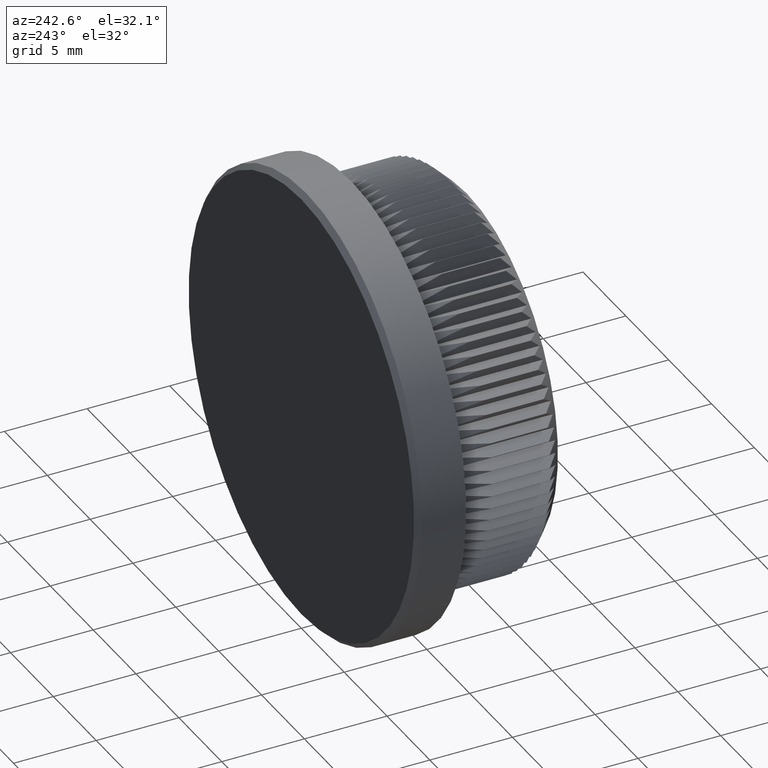
[diagram: clean part render]
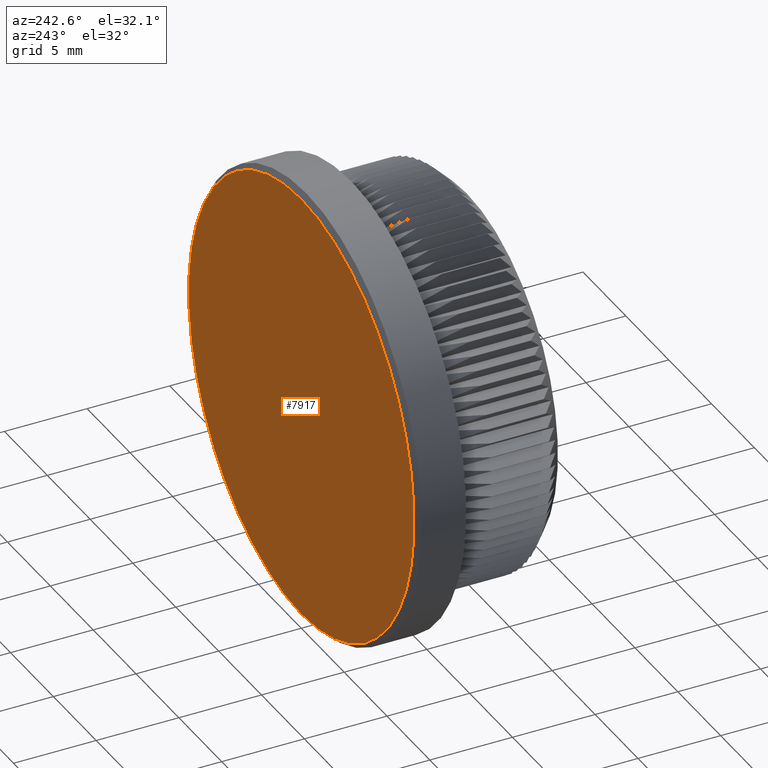
[diagram: same view with one face highlighted and labeled with its STEP entity id]
A machine part, auxiliary view. The second image highlights one B-rep face of the part: STEP entity #7917.
In plain terms, the highlighted planar face has unit normal (0, 1, 0).
Its self-contained STEP definition (entity closure, byte-faithful):
#265 = ORIENTED_EDGE ( 'NONE', *, *, #5220, .T. ) ;
#2528 = CIRCLE ( 'NONE', #24627, 13.14999999999999700 ) ;
#3013 = DIRECTION ( 'NONE',  ( 0.0000000000000000000, 1.000000000000000000, 0.0000000000000000000 ) ) ;
#4385 = CARTESIAN_POINT ( 'NONE',  ( 0.0000000000000000000, 10.00000000000000000, -13.14999999999999700 ) ) ;
#5218 = VERTEX_POINT ( 'NONE', #5635 ) ;
#5220 = EDGE_CURVE ( 'NONE', #5218, #20076, #2528, .T. ) ;
#5635 = CARTESIAN_POINT ( 'NONE',  ( 1.628780242865979600E-015, 10.00000000000000000, 13.14999999999999700 ) ) ;
#6112 = EDGE_LOOP ( 'NONE', ( #11954, #265 ) ) ;
#6894 = DIRECTION ( 'NONE',  ( 0.0000000000000000000, 1.000000000000000000, 0.0000000000000000000 ) ) ;
#7538 = DIRECTION ( 'NONE',  ( 0.0000000000000000000, 0.0000000000000000000, 1.000000000000000000 ) ) ;
#7917 = ADVANCED_FACE ( 'NONE', ( #13909 ), #20649, .T. ) ;
#8006 = AXIS2_PLACEMENT_3D ( 'NONE', #22493, #6894, #18825 ) ;
#8751 = CARTESIAN_POINT ( 'NONE',  ( 0.0000000000000000000, 10.00000000000000000, 0.0000000000000000000 ) ) ;
#10471 = CIRCLE ( 'NONE', #8006, 13.14999999999999700 ) ;
#11640 = AXIS2_PLACEMENT_3D ( 'NONE', #8751, #3013, #24397 ) ;
#11954 = ORIENTED_EDGE ( 'NONE', *, *, #20983, .T. ) ;
#13444 = CARTESIAN_POINT ( 'NONE',  ( 0.0000000000000000000, 10.00000000000000000, 0.0000000000000000000 ) ) ;
#13532 = DIRECTION ( 'NONE',  ( 0.0000000000000000000, 1.000000000000000000, 0.0000000000000000000 ) ) ;
#13909 = FACE_OUTER_BOUND ( 'NONE', #6112, .T. ) ;
#18825 = DIRECTION ( 'NONE',  ( 0.0000000000000000000, 0.0000000000000000000, 1.000000000000000000 ) ) ;
#20076 = VERTEX_POINT ( 'NONE', #4385 ) ;
#20649 = PLANE ( 'NONE',  #11640 ) ;
#20983 = EDGE_CURVE ( 'NONE', #20076, #5218, #10471, .T. ) ;
#22493 = CARTESIAN_POINT ( 'NONE',  ( 0.0000000000000000000, 10.00000000000000000, 0.0000000000000000000 ) ) ;
#24397 = DIRECTION ( 'NONE',  ( 0.0000000000000000000, -0.0000000000000000000, 1.000000000000000000 ) ) ;
#24627 = AXIS2_PLACEMENT_3D ( 'NONE', #13444, #13532, #7538 ) ;